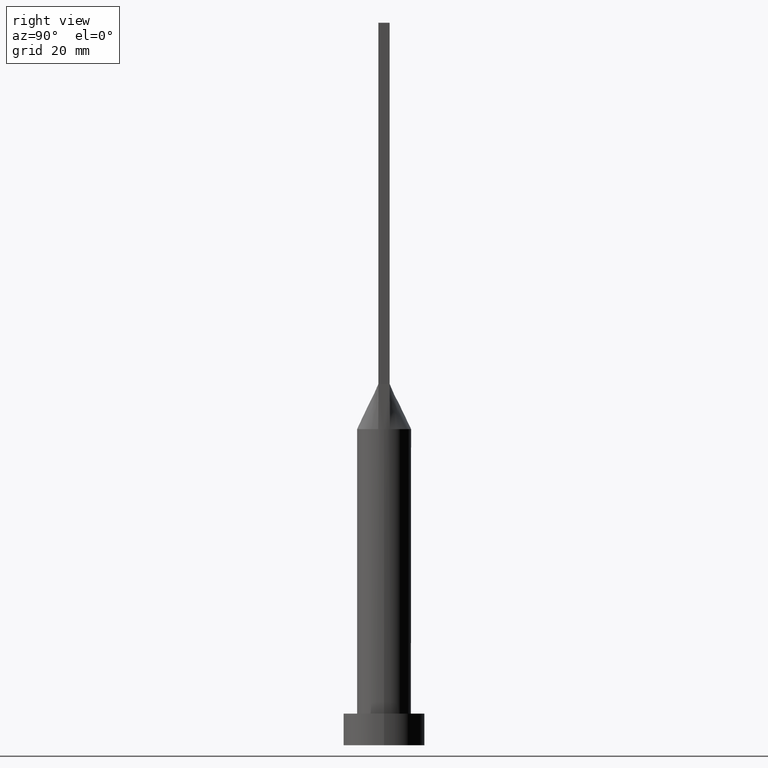
[diagram: clean part render]
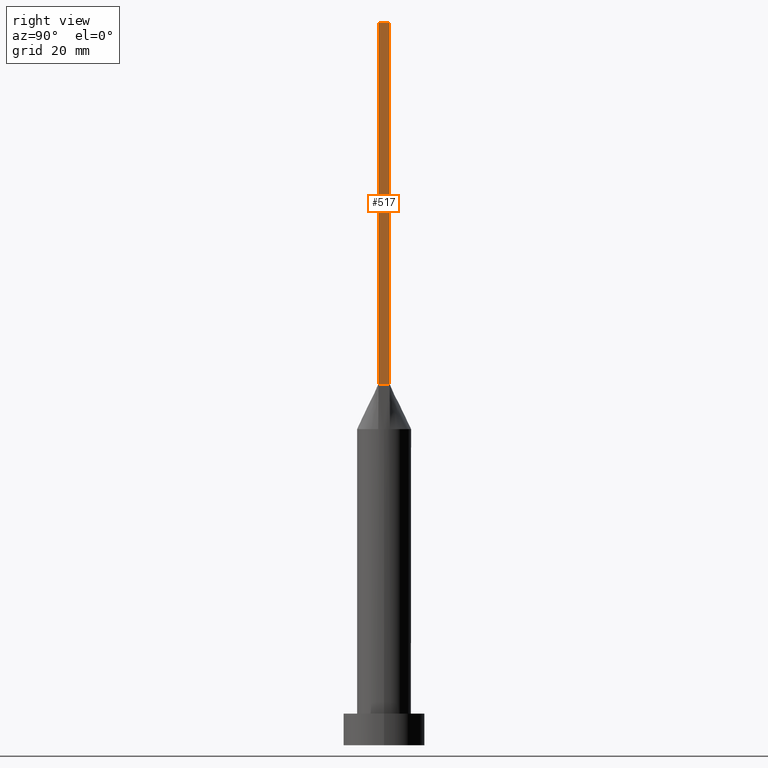
[diagram: same view with one face highlighted and labeled with its STEP entity id]
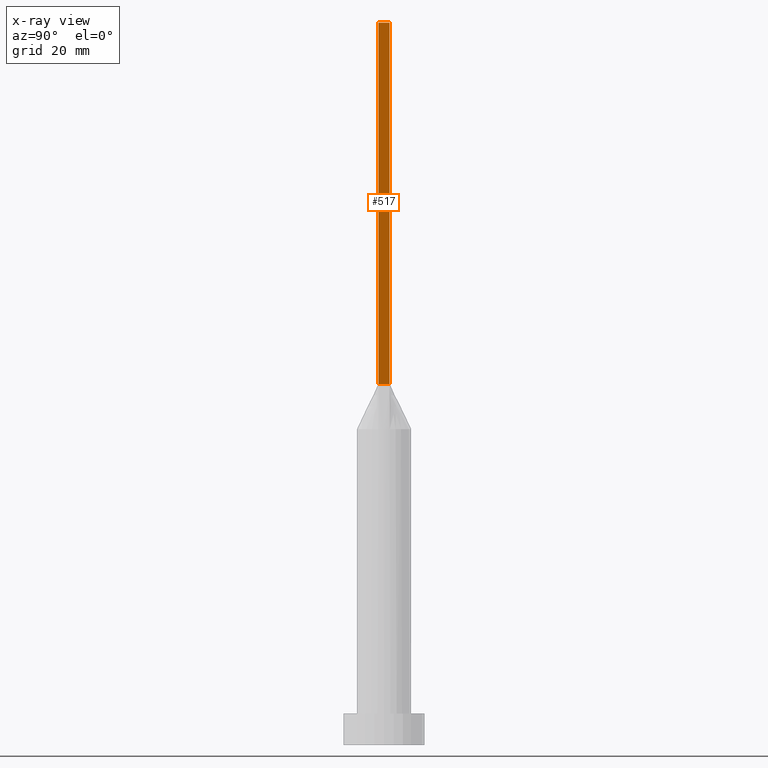
[diagram: x-ray of the same camera — body ghosted, the highlighted face saturated]
A machine part, right view. The second image highlights one B-rep face of the part: STEP entity #517.
The next image is the same camera in x-ray: the body ghosted, the highlighted face saturated — about 0% of this face is hidden behind the body in this view.
In plain terms, the highlighted planar face has unit normal (-1, 0, 0).
Its self-contained STEP definition (entity closure, byte-faithful):
#8 = LINE ( 'NONE', #193, #594 ) ;
#69 = ORIENTED_EDGE ( 'NONE', *, *, #242, .F. ) ;
#94 = VECTOR ( 'NONE', #559, 1000.000000000000000 ) ;
#117 = VERTEX_POINT ( 'NONE', #429 ) ;
#156 = ORIENTED_EDGE ( 'NONE', *, *, #415, .T. ) ;
#181 = LINE ( 'NONE', #361, #445 ) ;
#185 = CARTESIAN_POINT ( 'NONE',  ( 5.750000000000000000, -1.249999999999999778, 160.0000000000000000 ) ) ;
#193 = CARTESIAN_POINT ( 'NONE',  ( 5.750000000000000000, 1.250000000000000222, 80.00000000000000000 ) ) ;
#210 = ORIENTED_EDGE ( 'NONE', *, *, #449, .F. ) ;
#230 = VECTOR ( 'NONE', #591, 1000.000000000000000 ) ;
#239 = FACE_OUTER_BOUND ( 'NONE', #277, .T. ) ;
#242 = EDGE_CURVE ( 'NONE', #117, #258, #539, .T. ) ;
#244 = PLANE ( 'NONE',  #305 ) ;
#258 = VERTEX_POINT ( 'NONE', #543 ) ;
#277 = EDGE_LOOP ( 'NONE', ( #593, #69, #210, #156 ) ) ;
#280 = CARTESIAN_POINT ( 'NONE',  ( 5.750000000000000000, -1.249999999999999778, 160.0000000000000000 ) ) ;
#291 = VERTEX_POINT ( 'NONE', #525 ) ;
#305 = AXIS2_PLACEMENT_3D ( 'NONE', #327, #341, #383 ) ;
#327 = CARTESIAN_POINT ( 'NONE',  ( 5.750000000000000000, -1.249999999999999778, 160.0000000000000000 ) ) ;
#329 = LINE ( 'NONE', #280, #94 ) ;
#341 = DIRECTION ( 'NONE',  ( -1.000000000000000000, 0.000000000000000000, 0.000000000000000000 ) ) ;
#359 = VERTEX_POINT ( 'NONE', #185 ) ;
#361 = CARTESIAN_POINT ( 'NONE',  ( 5.750000000000000000, -1.249999999999999778, 160.0000000000000000 ) ) ;
#369 = DIRECTION ( 'NONE',  ( -0.000000000000000000, 1.000000000000000000, -0.000000000000000000 ) ) ;
#383 = DIRECTION ( 'NONE',  ( 0.000000000000000000, 0.000000000000000000, 1.000000000000000000 ) ) ;
#392 = EDGE_CURVE ( 'NONE', #291, #258, #8, .T. ) ;
#415 = EDGE_CURVE ( 'NONE', #359, #291, #329, .T. ) ;
#429 = CARTESIAN_POINT ( 'NONE',  ( 5.750000000000000000, 1.250000000000000222, 160.0000000000000000 ) ) ;
#445 = VECTOR ( 'NONE', #458, 1000.000000000000000 ) ;
#449 = EDGE_CURVE ( 'NONE', #359, #117, #181, .T. ) ;
#458 = DIRECTION ( 'NONE',  ( 0.000000000000000000, 1.000000000000000000, 0.000000000000000000 ) ) ;
#517 = ADVANCED_FACE ( 'NONE', ( #239 ), #244, .F. ) ;
#525 = CARTESIAN_POINT ( 'NONE',  ( 5.750000000000000000, -1.249999999999999778, 80.00000000000000000 ) ) ;
#534 = CARTESIAN_POINT ( 'NONE',  ( 5.750000000000000000, 1.250000000000000222, 160.0000000000000000 ) ) ;
#539 = LINE ( 'NONE', #534, #230 ) ;
#543 = CARTESIAN_POINT ( 'NONE',  ( 5.750000000000000000, 1.250000000000000222, 80.00000000000000000 ) ) ;
#559 = DIRECTION ( 'NONE',  ( -0.000000000000000000, -0.000000000000000000, -1.000000000000000000 ) ) ;
#591 = DIRECTION ( 'NONE',  ( -0.000000000000000000, -0.000000000000000000, -1.000000000000000000 ) ) ;
#593 = ORIENTED_EDGE ( 'NONE', *, *, #392, .T. ) ;
#594 = VECTOR ( 'NONE', #369, 1000.000000000000000 ) ;